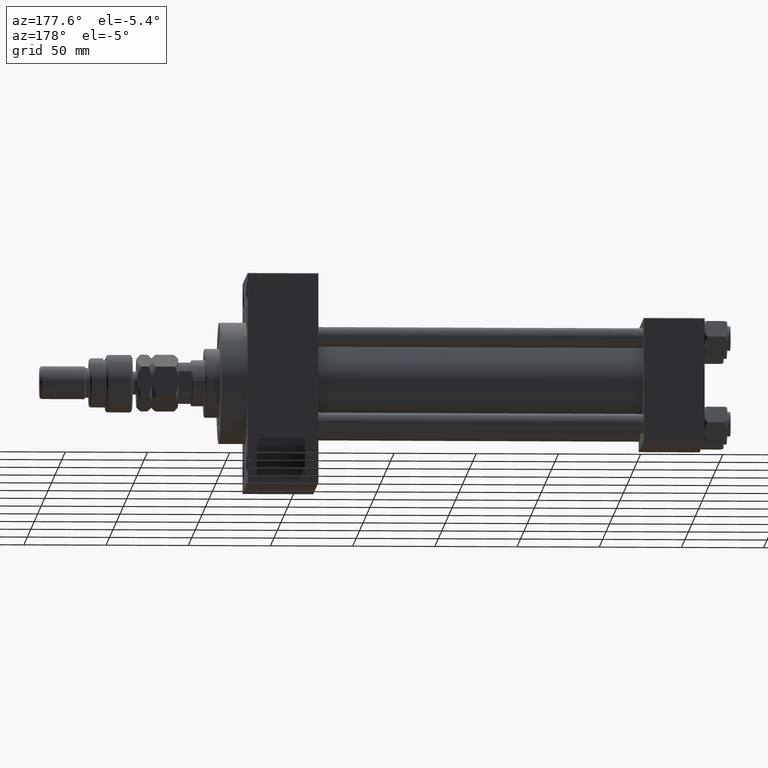
[diagram: clean part render]
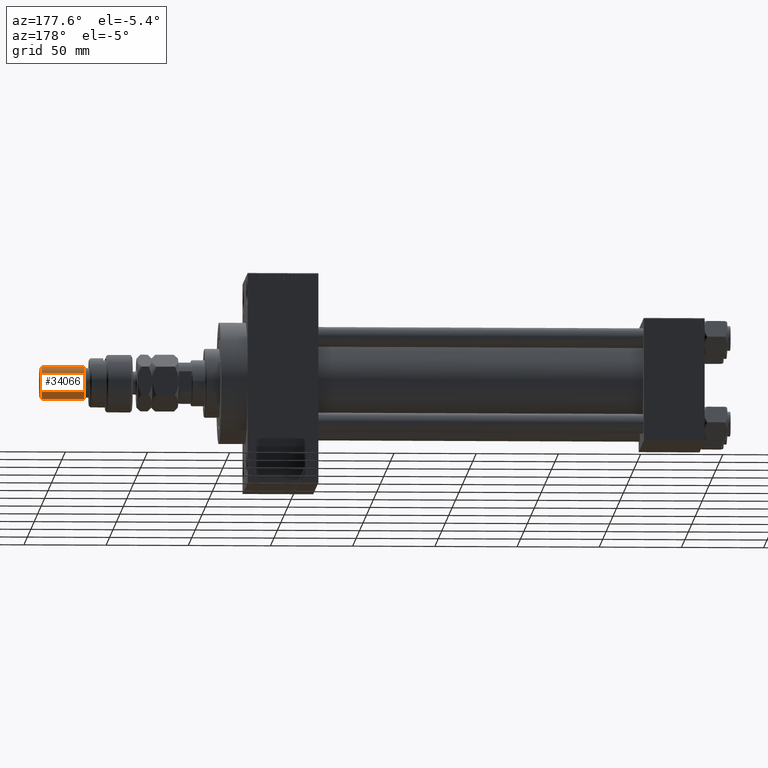
[diagram: same view with one face highlighted and labeled with its STEP entity id]
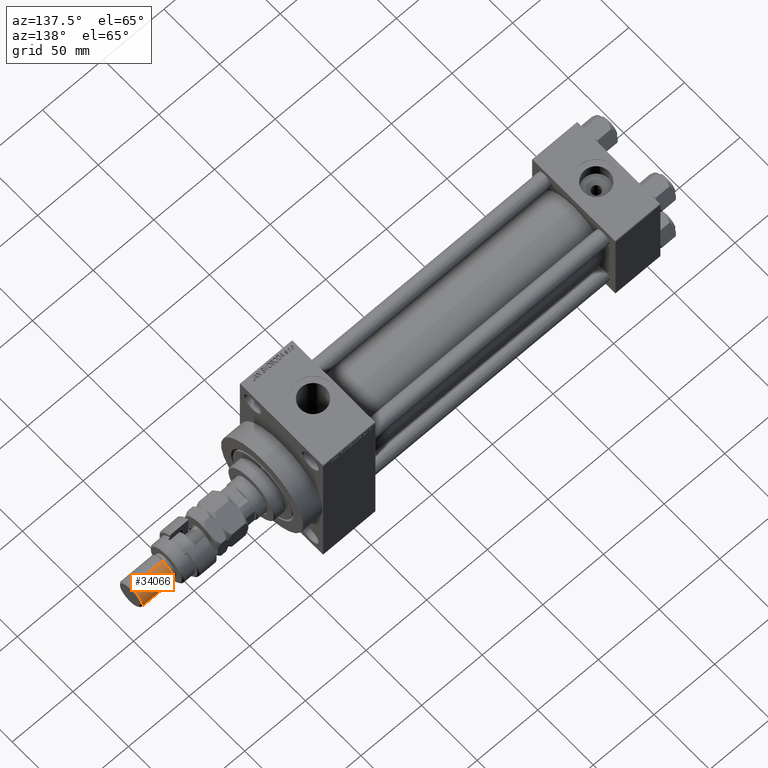
[diagram: same view with one face highlighted and labeled with its STEP entity id]
A machine part, auxiliary view. The second image highlights one B-rep face of the part: STEP entity #34066.
A second angle (auxiliary view) of the same face is appended — the face is thin or edge-on in the first view.
In plain terms, the highlighted cylindrical surface (edge-blend (fillet) strip) has radius 10 mm, axis along (-1, -0, 0).
Its self-contained STEP definition (entity closure, byte-faithful):
#272 = CARTESIAN_POINT ( 'NONE',  ( 10.00000000000000000, 1.224646799147353256E-15, 56.00000000000000711 ) ) ;
#970 = DIRECTION ( 'NONE',  ( -0.000000000000000000, -0.000000000000000000, 1.000000000000000000 ) ) ;
#1423 = CARTESIAN_POINT ( 'NONE',  ( -10.00000000000000000, 0.000000000000000000, 54.99999999999998579 ) ) ;
#3187 = CYLINDRICAL_SURFACE ( 'NONE', #17573, 10.00000000000000000 ) ;
#5018 = DIRECTION ( 'NONE',  ( -0.000000000000000000, -0.000000000000000000, -1.000000000000000000 ) ) ;
#5062 = VECTOR ( 'NONE', #5018, 1000.000000000000000 ) ;
#5290 = CARTESIAN_POINT ( 'NONE',  ( 0.000000000000000000, 0.000000000000000000, 29.00000000000000711 ) ) ;
#5638 = CARTESIAN_POINT ( 'NONE',  ( 10.00000000000000000, 1.224646799147353256E-15, 29.00000000000000711 ) ) ;
#7237 = FACE_OUTER_BOUND ( 'NONE', #22615, .T. ) ;
#9090 = DIRECTION ( 'NONE',  ( 1.000000000000000000, 0.000000000000000000, 0.000000000000000000 ) ) ;
#10368 = VECTOR ( 'NONE', #12444, 1000.000000000000000 ) ;
#11053 = DIRECTION ( 'NONE',  ( -0.000000000000000000, -0.000000000000000000, -1.000000000000000000 ) ) ;
#11794 = ORIENTED_EDGE ( 'NONE', *, *, #22416, .F. ) ;
#12444 = DIRECTION ( 'NONE',  ( -0.000000000000000000, -0.000000000000000000, -1.000000000000000000 ) ) ;
#14042 = ORIENTED_EDGE ( 'NONE', *, *, #23386, .T. ) ;
#15834 = AXIS2_PLACEMENT_3D ( 'NONE', #46509, #30773, #34831 ) ;
#16016 = CARTESIAN_POINT ( 'NONE',  ( -10.00000000000000000, 0.000000000000000000, 29.00000000000000711 ) ) ;
#16862 = VERTEX_POINT ( 'NONE', #1423 ) ;
#17573 = AXIS2_PLACEMENT_3D ( 'NONE', #50176, #11053, #18658 ) ;
#18658 = DIRECTION ( 'NONE',  ( -1.000000000000000000, 0.000000000000000000, 0.000000000000000000 ) ) ;
#19413 = CARTESIAN_POINT ( 'NONE',  ( 10.00000000000000000, 1.224646799147353256E-15, 54.99999999999998579 ) ) ;
#20831 = VERTEX_POINT ( 'NONE', #5638 ) ;
#21962 = ORIENTED_EDGE ( 'NONE', *, *, #32737, .T. ) ;
#22416 = EDGE_CURVE ( 'NONE', #16862, #40280, #43881, .T. ) ;
#22615 = EDGE_LOOP ( 'NONE', ( #37136, #21962, #14042, #11794 ) ) ;
#23386 = EDGE_CURVE ( 'NONE', #20831, #40280, #45688, .T. ) ;
#23856 = VERTEX_POINT ( 'NONE', #19413 ) ;
#24308 = CARTESIAN_POINT ( 'NONE',  ( -10.00000000000000000, 0.000000000000000000, 56.00000000000000711 ) ) ;
#27845 = EDGE_CURVE ( 'NONE', #16862, #23856, #49952, .T. ) ;
#30773 = DIRECTION ( 'NONE',  ( 0.000000000000000000, 0.000000000000000000, -1.000000000000000000 ) ) ;
#32737 = EDGE_CURVE ( 'NONE', #23856, #20831, #47254, .T. ) ;
#34066 = ADVANCED_FACE ( 'NONE', ( #7237 ), #3187, .T. ) ;
#34831 = DIRECTION ( 'NONE',  ( 1.000000000000000000, 0.000000000000000000, 0.000000000000000000 ) ) ;
#37136 = ORIENTED_EDGE ( 'NONE', *, *, #27845, .T. ) ;
#40280 = VERTEX_POINT ( 'NONE', #16016 ) ;
#41633 = AXIS2_PLACEMENT_3D ( 'NONE', #5290, #970, #9090 ) ;
#43881 = LINE ( 'NONE', #24308, #5062 ) ;
#45688 = CIRCLE ( 'NONE', #41633, 10.00000000000000000 ) ;
#46509 = CARTESIAN_POINT ( 'NONE',  ( 0.000000000000000000, 0.000000000000000000, 54.99999999999998579 ) ) ;
#47254 = LINE ( 'NONE', #272, #10368 ) ;
#49952 = CIRCLE ( 'NONE', #15834, 10.00000000000000000 ) ;
#50176 = CARTESIAN_POINT ( 'NONE',  ( 0.000000000000000000, 0.000000000000000000, 56.00000000000000711 ) ) ;